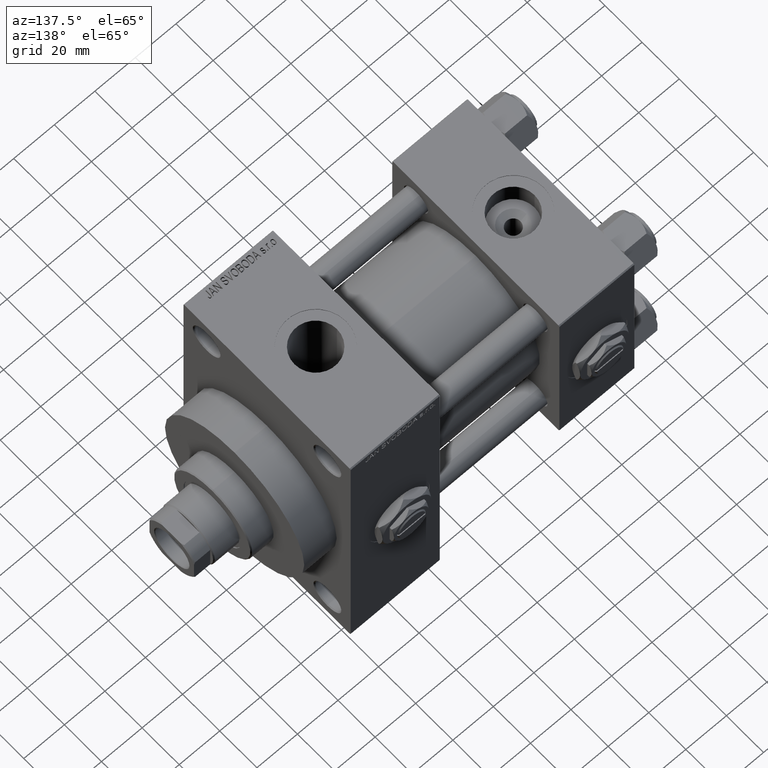
[diagram: clean part render]
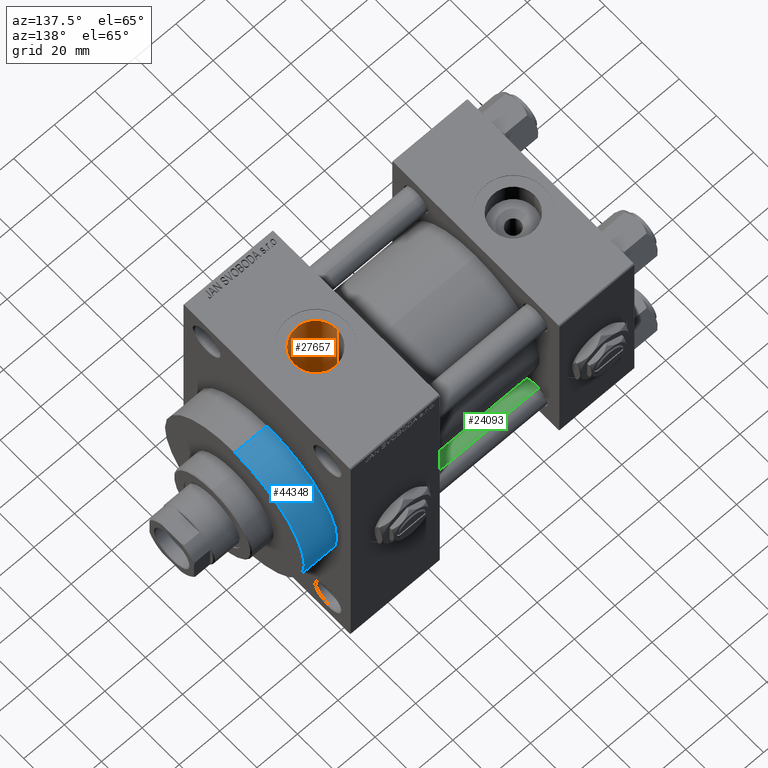
[diagram: same view with three faces highlighted in distinct colors, each labeled with its STEP entity id]
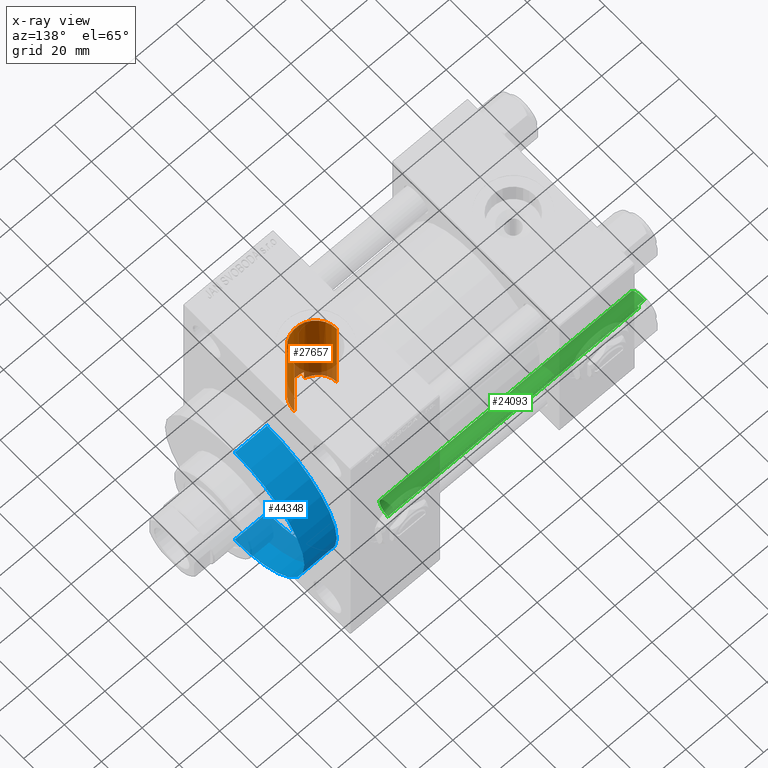
[diagram: x-ray of the same camera — body ghosted, the three highlighted faces saturated]
A machine part, auxiliary view with three faces highlighted in distinct colors.
The next image is the same camera in x-ray (body ghosted, the three faces saturated) — at least one of them is partly hidden behind the body in this view.
Their STEP definitions:

[orange] entity #27657 — the highlighted cylindrical surface (edge-blend (fillet) strip) has radius 10.48 mm, axis along (0, 0, -1).
#634 = CARTESIAN_POINT ( 'NONE',  ( 105.7506109030364456, -2.203904040410064713, 24.90413656399007891 ) ) ;
#1119 = CARTESIAN_POINT ( 'NONE',  ( 106.2133645239136825, -3.788497290311540144, 24.71686331191869712 ) ) ;
#1260 = ORIENTED_EDGE ( 'NONE', *, *, #2869, .T. ) ;
#2869 = EDGE_CURVE ( 'NONE', #20197, #31044, #16715, .T. ) ;
#3306 = EDGE_CURVE ( 'NONE', #31783, #21399, #14330, .T. ) ;
#3344 = CARTESIAN_POINT ( 'NONE',  ( 125.5132943898858144, -4.415432476193863032, 29.67559266697256604 ) ) ;
#3585 = CARTESIAN_POINT ( 'NONE',  ( 118.4739236950475174, -10.19211099814794075, 28.21586709986687325 ) ) ;
#4047 = EDGE_CURVE ( 'NONE', #8894, #21399, #6266, .T. ) ;
#4084 = CARTESIAN_POINT ( 'NONE',  ( 113.1356366639054301, -10.08955499213377394, 28.25278262901557724 ) ) ;
#4612 = CARTESIAN_POINT ( 'NONE',  ( 112.7400000000000375, -9.960060240781698937, 22.93026820601973981 ) ) ;
#5237 = DIRECTION ( 'NONE',  ( 0.000000000000000000, 0.000000000000000000, -1.000000000000000000 ) ) ;
#6266 = B_SPLINE_CURVE_WITH_KNOTS ( 'NONE', 3,
 ( #4612, #23579, #42744, #34550, #42263, #7855, #38541, #20328, #27559, #30555, #20081, #16094, #1119, #35525, #27316, #634, #35039, #16333, #23339, #46236 ),
 .UNSPECIFIED., .F., .F.,
 ( 4, 2, 2, 2, 2, 2, 2, 2, 2, 4 ),
 ( 0.01988964932192578347, 0.02154756030224162094, 0.02320547128255745842, 0.02486338226287329589, 0.02652129324318913683, 0.02817920422350497084, 0.02983711520382081178, 0.03066607069397872878, 0.03149502618413664579, 0.03315293716445248673 ),
 .UNSPECIFIED. ) ;
#6741 = ORIENTED_EDGE ( 'NONE', *, *, #12745, .F. ) ;
#6745 = VECTOR ( 'NONE', #5237, 1000.000000000000000 ) ;
#6778 = DIRECTION ( 'NONE',  ( -0.000000000000000000, -0.000000000000000000, -1.000000000000000000 ) ) ;
#7025 = VERTEX_POINT ( 'NONE', #10431 ) ;
#7337 = CARTESIAN_POINT ( 'NONE',  ( 120.4065122839482740, -9.517374506241301546, 28.45078537450224943 ) ) ;
#7579 = CARTESIAN_POINT ( 'NONE',  ( 114.3547903624770328, -10.35843936797070697, 28.15511119385354633 ) ) ;
#7824 = CARTESIAN_POINT ( 'NONE',  ( 126.4550640607020284, -0.8335913317593991456, 29.99126230196789678 ) ) ;
#7855 = CARTESIAN_POINT ( 'NONE',  ( 109.3891897638274031, -8.150065112751551766, 23.63667431967812504 ) ) ;
#8894 = VERTEX_POINT ( 'NONE', #39944 ) ;
#9260 = CARTESIAN_POINT ( 'NONE',  ( 126.4800000000000040, -9.664602758436087591E-15, 70.79999999999996874 ) ) ;
#9651 = EDGE_CURVE ( 'NONE', #8894, #7025, #47979, .T. ) ;
#9972 = CARTESIAN_POINT ( 'NONE',  ( 126.4800000000000040, -9.664602758436087591E-15, 93.79999999999996874 ) ) ;
#10431 = CARTESIAN_POINT ( 'NONE',  ( 112.7400000000000375, -9.960060240781698937, 28.29836037653064551 ) ) ;
#11321 = DIRECTION ( 'NONE',  ( 0.000000000000000000, 0.000000000000000000, -1.000000000000000000 ) ) ;
#11820 = CARTESIAN_POINT ( 'NONE',  ( 126.0890390176183047, -2.865498728266689277, 29.86553233084089598 ) ) ;
#12540 = CIRCLE ( 'NONE', #30154, 10.48000000000000398 ) ;
#12745 = EDGE_CURVE ( 'NONE', #20197, #31783, #12540, .T. ) ;
#13357 = CARTESIAN_POINT ( 'NONE',  ( 105.5199999999999960, -1.094803260394251466E-14, 70.79999999999996874 ) ) ;
#14152 = VECTOR ( 'NONE', #44472, 1000.000000000000000 ) ;
#14330 = LINE ( 'NONE', #33518, #19507 ) ;
#14384 = CARTESIAN_POINT ( 'NONE',  ( 105.5199999999999960, 3.061579607129328475E-15, 25.00000000000000000 ) ) ;
#14609 = DIRECTION ( 'NONE',  ( 0.000000000000000000, 0.000000000000000000, -1.000000000000000000 ) ) ;
#14826 = CARTESIAN_POINT ( 'NONE',  ( 122.4991569451229054, -8.231478667600777399, 28.84970080865382869 ) ) ;
#14848 = FACE_OUTER_BOUND ( 'NONE', #37383, .T. ) ;
#15074 = CARTESIAN_POINT ( 'NONE',  ( 125.9688766884320188, -3.259248874892656911, 29.82498403132067466 ) ) ;
#15327 = CARTESIAN_POINT ( 'NONE',  ( 116.8323486893806091, -10.48013219117958350, 28.11025684355165666 ) ) ;
#15595 = DIRECTION ( 'NONE',  ( -1.000000000000000000, 0.000000000000000000, 0.000000000000000000 ) ) ;
#16094 = CARTESIAN_POINT ( 'NONE',  ( 106.4236355937511860, -4.292206019337017509, 24.63377942571623791 ) ) ;
#16333 = CARTESIAN_POINT ( 'NONE',  ( 105.5634374036090293, -1.103933992171570289, 24.98169420149659103 ) ) ;
#16715 = LINE ( 'NONE', #9972, #6745 ) ;
#18581 = CARTESIAN_POINT ( 'NONE',  ( 123.4108071772773485, -7.421314247701561229, 29.06898203862667529 ) ) ;
#18823 = CARTESIAN_POINT ( 'NONE',  ( 118.0676511321232738, -10.28246626870992841, 28.18289933756998522 ) ) ;
#19144 = ORIENTED_EDGE ( 'NONE', *, *, #9651, .F. ) ;
#19507 = VECTOR ( 'NONE', #11321, 1000.000000000000000 ) ;
#20081 = CARTESIAN_POINT ( 'NONE',  ( 106.9226781161778490, -5.266119555344892511, 24.44410166351154601 ) ) ;
#20197 = VERTEX_POINT ( 'NONE', #9260 ) ;
#20328 = CARTESIAN_POINT ( 'NONE',  ( 108.2050283705145972, -7.025831027277333440, 23.99580452550001652 ) ) ;
#21399 = VERTEX_POINT ( 'NONE', #14384 ) ;
#22002 = DIRECTION ( 'NONE',  ( 1.000000000000000000, 0.000000000000000000, 0.000000000000000000 ) ) ;
#22563 = CARTESIAN_POINT ( 'NONE',  ( 119.6511764337021759, -9.831921411942657230, 28.34362233849840607 ) ) ;
#22806 = CARTESIAN_POINT ( 'NONE',  ( 113.5376865130923534, -10.19514556951084749, 28.21465150049997916 ) ) ;
#23058 = CARTESIAN_POINT ( 'NONE',  ( 121.8407164529724724, -8.711045480795176488, 28.70853818005238267 ) ) ;
#23246 = CARTESIAN_POINT ( 'NONE',  ( 126.4800000000000040, 3.673940397618681979E-15, 30.00000000000000000 ) ) ;
#23312 = CARTESIAN_POINT ( 'NONE',  ( 124.9516850616486181, -5.511024492678212816, 29.49874548845619415 ) ) ;
#23339 = CARTESIAN_POINT ( 'NONE',  ( 105.5200000000000102, -0.5526487399564715686, 25.00000000000000355 ) ) ;
#23552 = EDGE_CURVE ( 'NONE', #31044, #7025, #31350, .T. ) ;
#23579 = CARTESIAN_POINT ( 'NONE',  ( 112.2166163324468187, -9.788752968036774860, 23.00467774806668331 ) ) ;
#26539 = CARTESIAN_POINT ( 'NONE',  ( 126.3561768723854044, -1.659168348792957159, 29.95693324364475885 ) ) ;
#27316 = CARTESIAN_POINT ( 'NONE',  ( 105.8813829677837219, -2.742400269040762062, 24.85060264423316667 ) ) ;
#27559 = CARTESIAN_POINT ( 'NONE',  ( 107.8536174240124694, -6.615275848649987189, 24.11313317637569043 ) ) ;
#27657 = ADVANCED_FACE ( 'NONE', ( #14848 ), #33797, .F. ) ;
#30026 = CARTESIAN_POINT ( 'NONE',  ( 121.4955340743380532, -8.933090684329171083, 28.63992046840855110 ) ) ;
#30154 = AXIS2_PLACEMENT_3D ( 'NONE', #40941, #6778, #22002 ) ;
#30277 = CARTESIAN_POINT ( 'NONE',  ( 119.2647576281308659, -9.966984633129877480, 28.29617465522276376 ) ) ;
#30555 = CARTESIAN_POINT ( 'NONE',  ( 107.2133851667944242, -5.737667069548106014, 24.33689057242902365 ) ) ;
#31044 = VERTEX_POINT ( 'NONE', #23246 ) ;
#31350 = B_SPLINE_CURVE_WITH_KNOTS ( 'NONE', 3,
 ( #41245, #49205, #7824, #26539, #41741, #11820, #15074, #42234, #3344, #23312, #45213, #48963, #18581, #33774, #14826, #23058, #30026, #41491, #7337, #22563, #30277, #3585, #18823, #15327, #38257, #45462, #7579, #22806, #4084, #45710 ),
 .UNSPECIFIED., .F., .F.,
 ( 4, 2, 2, 2, 2, 2, 2, 2, 2, 2, 2, 2, 2, 2, 4 ),
 ( 0.01983178583558416891, 0.02107005794959066619, 0.02230833006359716347, 0.02354660217760366075, 0.02478487429161015804, 0.02726141851962313178, 0.02849969063362963254, 0.02973796274763613329, 0.03097623486164263404, 0.03221450697564913479, 0.03345277908965563207, 0.03469105120366213629, 0.03716759543167513780, 0.03840586754568163508, 0.03964413965968813930 ),
 .UNSPECIFIED. ) ;
#31783 = VERTEX_POINT ( 'NONE', #13357 ) ;
#33518 = CARTESIAN_POINT ( 'NONE',  ( 105.5199999999999960, -1.094803260394251466E-14, 93.79999999999996874 ) ) ;
#33774 = CARTESIAN_POINT ( 'NONE',  ( 122.8130789427704599, -7.973576581528564411, 28.92237366509943541 ) ) ;
#33797 = CYLINDRICAL_SURFACE ( 'NONE', #36813, 10.48000000000000398 ) ;
#34550 = CARTESIAN_POINT ( 'NONE',  ( 110.7309451898282191, -9.075553538226490247, 23.29606161660610297 ) ) ;
#35039 = CARTESIAN_POINT ( 'NONE',  ( 105.6952564760870388, -1.928778934517578758, 24.92700825772721984 ) ) ;
#35525 = CARTESIAN_POINT ( 'NONE',  ( 105.9569663818569580, -3.007160148706868874, 24.81987104649663323 ) ) ;
#36523 = CARTESIAN_POINT ( 'NONE',  ( 112.7400000000000375, -9.960060240781698937, 93.79999999999996874 ) ) ;
#36813 = AXIS2_PLACEMENT_3D ( 'NONE', #41269, #14609, #15595 ) ;
#37383 = EDGE_LOOP ( 'NONE', ( #6741, #1260, #49148, #19144, #41613, #37848 ) ) ;
#37848 = ORIENTED_EDGE ( 'NONE', *, *, #3306, .F. ) ;
#38257 = CARTESIAN_POINT ( 'NONE',  ( 116.0079132330771188, -10.51264281222110952, 28.09784841831593738 ) ) ;
#38541 = CARTESIAN_POINT ( 'NONE',  ( 108.9710119791482725, -7.792124981740102818, 23.75802442794438463 ) ) ;
#39944 = CARTESIAN_POINT ( 'NONE',  ( 112.7400000000000375, -9.960060240781698937, 22.93026820601973981 ) ) ;
#40941 = CARTESIAN_POINT ( 'NONE',  ( 116.0000000000000000, -1.094803260394251466E-14, 70.79999999999996874 ) ) ;
#41245 = CARTESIAN_POINT ( 'NONE',  ( 126.4800000000000040, 3.673940397618681979E-15, 30.00000000000000000 ) ) ;
#41269 = CARTESIAN_POINT ( 'NONE',  ( 116.0000000000000000, -1.094803260394251466E-14, 93.79999999999996874 ) ) ;
#41491 = CARTESIAN_POINT ( 'NONE',  ( 120.7754301067501075, -9.337894368229051167, 28.51050477243452619 ) ) ;
#41613 = ORIENTED_EDGE ( 'NONE', *, *, #4047, .T. ) ;
#41741 = CARTESIAN_POINT ( 'NONE',  ( 126.2826880867323496, -2.065458053724753995, 29.93150493033227022 ) ) ;
#42234 = CARTESIAN_POINT ( 'NONE',  ( 125.6812555715534074, -4.034166111592121240, 29.73008374493929651 ) ) ;
#42263 = CARTESIAN_POINT ( 'NONE',  ( 110.2686167523512495, -8.790768987372265642, 23.40594614296280440 ) ) ;
#42744 = CARTESIAN_POINT ( 'NONE',  ( 111.7027284824028044, -9.574030923381087632, 23.09567255457320911 ) ) ;
#44472 = DIRECTION ( 'NONE',  ( -0.000000000000000000, -0.000000000000000000, 1.000000000000000000 ) ) ;
#45213 = CARTESIAN_POINT ( 'NONE',  ( 124.4977574635255451, -6.188339515081483277, 29.36182159556007321 ) ) ;
#45462 = CARTESIAN_POINT ( 'NONE',  ( 114.7699339040235316, -10.41578934976508819, 28.13383227326702496 ) ) ;
#45710 = CARTESIAN_POINT ( 'NONE',  ( 112.7400000000000375, -9.960060240781698937, 28.29836037653064551 ) ) ;
#46236 = CARTESIAN_POINT ( 'NONE',  ( 105.5199999999999960, 3.061579607129328475E-15, 25.00000000000000000 ) ) ;
#47979 = LINE ( 'NONE', #36523, #14152 ) ;
#48963 = CARTESIAN_POINT ( 'NONE',  ( 123.6953313842686697, -7.126116182886379491, 29.14312091195552057 ) ) ;
#49148 = ORIENTED_EDGE ( 'NONE', *, *, #23552, .T. ) ;
#49205 = CARTESIAN_POINT ( 'NONE',  ( 126.4799999999999471, -0.4140493469419934125, 30.00000000000001066 ) ) ;

[blue] entity #44348 — the highlighted cylindrical surface (partial cylindrical patch) has radius 37.5 mm, axis along (-1, -0, -0).
#2211 = CARTESIAN_POINT ( 'NONE',  ( 140.0000000000000000, 0.000000000000000000, 37.50000000000000711 ) ) ;
#3395 = EDGE_CURVE ( 'NONE', #14409, #48426, #28249, .T. ) ;
#3418 = ORIENTED_EDGE ( 'NONE', *, *, #45457, .T. ) ;
#3652 = ORIENTED_EDGE ( 'NONE', *, *, #34993, .F. ) ;
#5302 = DIRECTION ( 'NONE',  ( 0.000000000000000000, 0.000000000000000000, -1.000000000000000000 ) ) ;
#5464 = CARTESIAN_POINT ( 'NONE',  ( 156.0000000000000284, 0.000000000000000000, 0.000000000000000000 ) ) ;
#11288 = EDGE_CURVE ( 'NONE', #14409, #14398, #12667, .T. ) ;
#12131 = EDGE_LOOP ( 'NONE', ( #31575, #26908, #3418, #3652 ) ) ;
#12667 = LINE ( 'NONE', #20170, #27750 ) ;
#13692 = DIRECTION ( 'NONE',  ( 0.000000000000000000, 0.000000000000000000, 1.000000000000000000 ) ) ;
#14377 = DIRECTION ( 'NONE',  ( 1.000000000000000000, 0.000000000000000000, 0.000000000000000000 ) ) ;
#14398 = VERTEX_POINT ( 'NONE', #25509 ) ;
#14409 = VERTEX_POINT ( 'NONE', #21036 ) ;
#16947 = DIRECTION ( 'NONE',  ( -1.000000000000000000, -0.000000000000000000, -0.000000000000000000 ) ) ;
#20170 = CARTESIAN_POINT ( 'NONE',  ( 156.0000000000000284, 4.592425496802575156E-15, -37.50000000000000711 ) ) ;
#20438 = CARTESIAN_POINT ( 'NONE',  ( 156.0000000000000284, 0.000000000000000000, 37.50000000000000711 ) ) ;
#21036 = CARTESIAN_POINT ( 'NONE',  ( 156.0000000000000284, 4.592425496802575156E-15, -37.50000000000000711 ) ) ;
#22260 = CARTESIAN_POINT ( 'NONE',  ( 156.0000000000000284, 0.000000000000000000, 37.50000000000000711 ) ) ;
#24334 = VERTEX_POINT ( 'NONE', #2211 ) ;
#25509 = CARTESIAN_POINT ( 'NONE',  ( 140.0000000000000000, 4.592425496802575156E-15, -37.50000000000000711 ) ) ;
#25751 = DIRECTION ( 'NONE',  ( -1.000000000000000000, -0.000000000000000000, -0.000000000000000000 ) ) ;
#26908 = ORIENTED_EDGE ( 'NONE', *, *, #11288, .T. ) ;
#27519 = DIRECTION ( 'NONE',  ( 1.000000000000000000, 0.000000000000000000, 0.000000000000000000 ) ) ;
#27750 = VECTOR ( 'NONE', #27881, 1000.000000000000000 ) ;
#27881 = DIRECTION ( 'NONE',  ( -1.000000000000000000, -0.000000000000000000, -0.000000000000000000 ) ) ;
#28249 = CIRCLE ( 'NONE', #29844, 37.50000000000000711 ) ;
#28841 = CIRCLE ( 'NONE', #35211, 37.50000000000000711 ) ;
#29844 = AXIS2_PLACEMENT_3D ( 'NONE', #39462, #27519, #5302 ) ;
#30153 = VECTOR ( 'NONE', #25751, 1000.000000000000000 ) ;
#31575 = ORIENTED_EDGE ( 'NONE', *, *, #3395, .F. ) ;
#32087 = AXIS2_PLACEMENT_3D ( 'NONE', #5464, #16947, #13692 ) ;
#34993 = EDGE_CURVE ( 'NONE', #48426, #24334, #48425, .T. ) ;
#35211 = AXIS2_PLACEMENT_3D ( 'NONE', #36827, #14377, #48517 ) ;
#36827 = CARTESIAN_POINT ( 'NONE',  ( 140.0000000000000000, 0.000000000000000000, 0.000000000000000000 ) ) ;
#39462 = CARTESIAN_POINT ( 'NONE',  ( 156.0000000000000284, 0.000000000000000000, 0.000000000000000000 ) ) ;
#39621 = CYLINDRICAL_SURFACE ( 'NONE', #32087, 37.50000000000000711 ) ;
#44348 = ADVANCED_FACE ( 'NONE', ( #47834 ), #39621, .T. ) ;
#45457 = EDGE_CURVE ( 'NONE', #14398, #24334, #28841, .T. ) ;
#47834 = FACE_OUTER_BOUND ( 'NONE', #12131, .T. ) ;
#48425 = LINE ( 'NONE', #22260, #30153 ) ;
#48426 = VERTEX_POINT ( 'NONE', #20438 ) ;
#48517 = DIRECTION ( 'NONE',  ( 0.000000000000000000, 0.000000000000000000, -1.000000000000000000 ) ) ;

[green] entity #24093 — the highlighted cylindrical surface (edge-blend (fillet) strip) has radius 6 mm, axis along (1, -0, 0).
#1121 = VERTEX_POINT ( 'NONE', #33380 ) ;
#1822 = VECTOR ( 'NONE', #45995, 1000.000000000000000 ) ;
#2636 = ORIENTED_EDGE ( 'NONE', *, *, #42870, .T. ) ;
#3926 = DIRECTION ( 'NONE',  ( -0.000000000000000000, -0.000000000000000000, -1.000000000000000000 ) ) ;
#4158 = AXIS2_PLACEMENT_3D ( 'NONE', #45852, #18970, #38404 ) ;
#4176 = CARTESIAN_POINT ( 'NONE',  ( -6.000000000000000888, 0.000000000000000000, 125.0000000000000000 ) ) ;
#5181 = DIRECTION ( 'NONE',  ( 1.000000000000000000, 0.000000000000000000, 0.000000000000000000 ) ) ;
#6378 = DIRECTION ( 'NONE',  ( 1.000000000000000000, 0.000000000000000000, 0.000000000000000000 ) ) ;
#12605 = CARTESIAN_POINT ( 'NONE',  ( -6.000000000000000888, 0.000000000000000000, 0.4999999999999865663 ) ) ;
#12925 = CIRCLE ( 'NONE', #18531, 6.000000000000000888 ) ;
#15368 = LINE ( 'NONE', #30566, #1822 ) ;
#15776 = EDGE_LOOP ( 'NONE', ( #31872, #28131, #26343, #2636 ) ) ;
#16985 = CARTESIAN_POINT ( 'NONE',  ( -6.000000000000000888, 0.000000000000000000, 124.5000000000000000 ) ) ;
#18531 = AXIS2_PLACEMENT_3D ( 'NONE', #26054, #40784, #6378 ) ;
#18970 = DIRECTION ( 'NONE',  ( -0.000000000000000000, -0.000000000000000000, -1.000000000000000000 ) ) ;
#22247 = EDGE_CURVE ( 'NONE', #29621, #31095, #39157, .T. ) ;
#22503 = VERTEX_POINT ( 'NONE', #12605 ) ;
#23451 = FACE_OUTER_BOUND ( 'NONE', #15776, .T. ) ;
#24093 = ADVANCED_FACE ( 'NONE', ( #23451 ), #45609, .T. ) ;
#24137 = CARTESIAN_POINT ( 'NONE',  ( 0.000000000000000000, 0.000000000000000000, 124.5000000000000000 ) ) ;
#25318 = EDGE_CURVE ( 'NONE', #29621, #1121, #15368, .T. ) ;
#26054 = CARTESIAN_POINT ( 'NONE',  ( 0.000000000000000000, 0.000000000000000000, 0.4999999999999865663 ) ) ;
#26343 = ORIENTED_EDGE ( 'NONE', *, *, #28712, .T. ) ;
#28131 = ORIENTED_EDGE ( 'NONE', *, *, #22247, .T. ) ;
#28712 = EDGE_CURVE ( 'NONE', #31095, #22503, #46297, .T. ) ;
#29621 = VERTEX_POINT ( 'NONE', #48712 ) ;
#30566 = CARTESIAN_POINT ( 'NONE',  ( 6.000000000000000888, 7.347880794884120722E-16, 125.0000000000000000 ) ) ;
#31095 = VERTEX_POINT ( 'NONE', #16985 ) ;
#31872 = ORIENTED_EDGE ( 'NONE', *, *, #25318, .F. ) ;
#33380 = CARTESIAN_POINT ( 'NONE',  ( 6.000000000000000888, 7.347880794884120722E-16, 0.4999999999999865663 ) ) ;
#38404 = DIRECTION ( 'NONE',  ( -1.000000000000000000, 0.000000000000000000, 0.000000000000000000 ) ) ;
#39157 = CIRCLE ( 'NONE', #43947, 6.000000000000000888 ) ;
#39339 = DIRECTION ( 'NONE',  ( 0.000000000000000000, 0.000000000000000000, -1.000000000000000000 ) ) ;
#40784 = DIRECTION ( 'NONE',  ( -0.000000000000000000, -0.000000000000000000, 1.000000000000000000 ) ) ;
#40920 = VECTOR ( 'NONE', #3926, 1000.000000000000000 ) ;
#42870 = EDGE_CURVE ( 'NONE', #22503, #1121, #12925, .T. ) ;
#43947 = AXIS2_PLACEMENT_3D ( 'NONE', #24137, #39339, #5181 ) ;
#45609 = CYLINDRICAL_SURFACE ( 'NONE', #4158, 6.000000000000000888 ) ;
#45852 = CARTESIAN_POINT ( 'NONE',  ( 0.000000000000000000, 0.000000000000000000, 125.0000000000000000 ) ) ;
#45995 = DIRECTION ( 'NONE',  ( -0.000000000000000000, -0.000000000000000000, -1.000000000000000000 ) ) ;
#46297 = LINE ( 'NONE', #4176, #40920 ) ;
#48712 = CARTESIAN_POINT ( 'NONE',  ( 6.000000000000000888, 7.347880794884120722E-16, 124.5000000000000000 ) ) ;